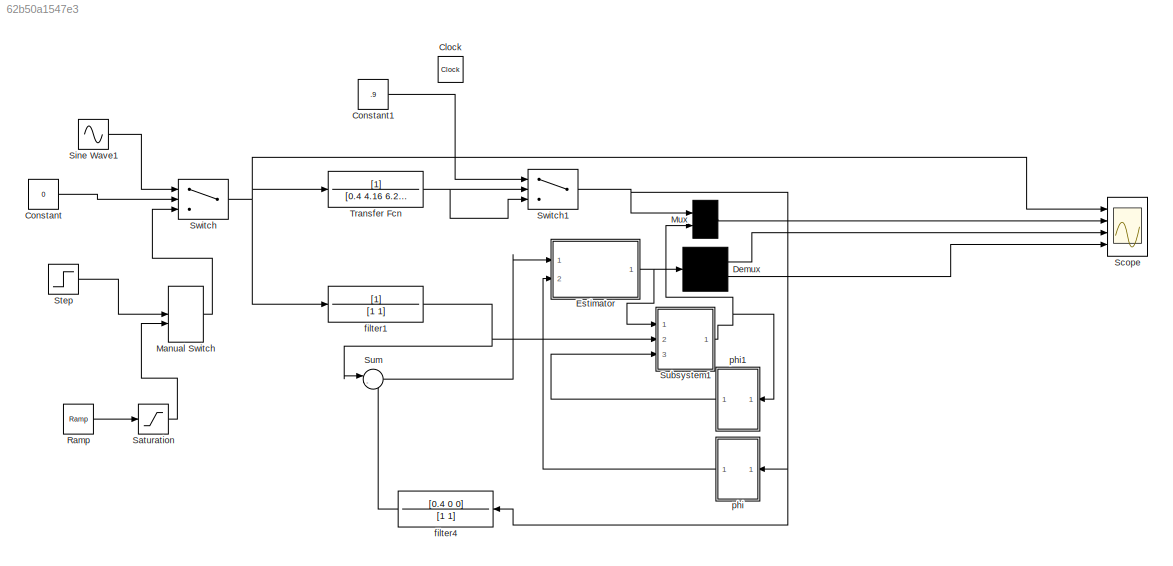
MODEL slx_62b50a1547e3
KIND model
CONFIG AbsTol = auto
CONFIG EnableMultiTasking = on
CONFIG FixedStep = auto
CONFIG MaxStep = auto
CONFIG MinStep = auto
CONFIG RelTol = 1e-3
CONFIG SampleTimeConstraint = Unconstrained
CONFIG Solver = VariableStepAuto
CONFIG SolverName = VariableStepAuto
CONFIG StartTime = 0.0
CONFIG StopTime = 10
BLOCK [Clock] Clock
  Decimation = 250
BLOCK [Constant] Constant
  Value = 0
BLOCK [Constant] Constant1
  Value = .9
BLOCK [Demux] Demux
  Outputs = 2
  Ports = [1, 2]
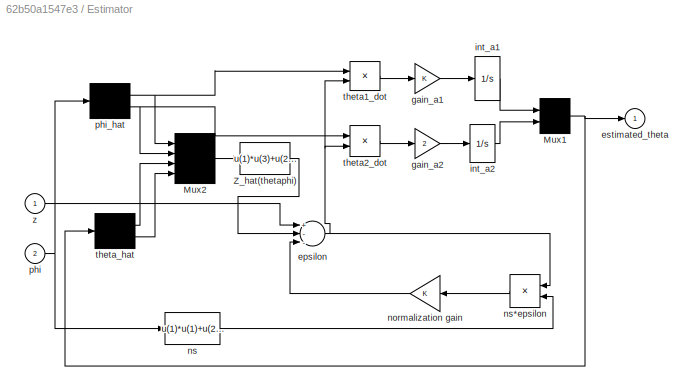
BLOCK [SubSystem] Estimator
  Ports = [2, 1]
  RequestExecContextInheritance = off
  ShowPortLabels = none
  Variant = off
BLOCK [Mux] Estimator/Mux1
  Inputs = 2
  Ports = [2, 1]
BLOCK [Mux] Estimator/Mux2
  Ports = [4, 1]
BLOCK [Fcn] Estimator/Z_hat(thetaphi)
  Expr = u(1)*u(3)+u(2)*u(4)
BLOCK [Sum] Estimator/epsilon
  Inputs = +--
  Ports = [3, 1]
BLOCK [Outport] Estimator/estimated_theta
  IconDisplay = Port number
BLOCK [Gain] Estimator/gain_a1
BLOCK [Gain] Estimator/gain_a2
  Gain = 2
BLOCK [Integrator] Estimator/int_a1
  Ports = [1, 1]
BLOCK [Integrator] Estimator/int_a2
  Ports = [1, 1]
BLOCK [Gain] Estimator/normalization gain
BLOCK [Fcn] Estimator/ns
  Expr = u(1)*u(1)+u(2)*u(2)
BLOCK [Product] Estimator/ns*epsilon
  Ports = [2, 1]
BLOCK [Inport] Estimator/phi
  IconDisplay = Port number
  Port = 2
BLOCK [Demux] Estimator/phi_hat
  Outputs = 2
  Ports = [1, 2]
BLOCK [Product] Estimator/theta1_dot
  Ports = [2, 1]
BLOCK [Product] Estimator/theta2_dot
  Ports = [2, 1]
BLOCK [Demux] Estimator/theta_hat
  Outputs = 2
  Ports = [1, 2]
BLOCK [Inport] Estimator/z
  IconDisplay = Port number
BLOCK [ManualSwitch] Manual Switch
BLOCK [Mux] Mux
  Inputs = 2
  Ports = [2, 1]
BLOCK [Reference] Ramp  REF=simulink/Sources/Ramp
  Ports = [0, 1]
  SourceBlock = simulink/Sources/Ramp
  SourceProductBaseCode = SL
  SourceProductName = Simulink
  SourceType = Ramp
BLOCK [Saturate] Saturation
  InputPortMap = u0
  Ports = [1, 1]
  UpperLimit = 9.81/1.5
BLOCK [Scope] Scope
  NumInputPorts = 4
  Ports = [4]
  ScopeSpecificationString = Simulink.scopes.TimeScopeBlockCfg('CurrentConfiguration', extmgr.ConfigurationSet(extmgr.Configuration('Core','General UI',true),extmgr.Configuration('Core','Source UI',true),extmgr.Configuration('Sources','WiredSimulink',true),extmgr.Configuration('Visuals','Time Domain',true,'SerializedDisplays',{struct('MinYLimReal','-0.8175','MaxYLimReal','7.3575','YLabelReal','','MinYLimMag','0.00000','MaxYLi...<+3330ch>
BLOCK [Sin] Sine Wave1
  Bias = 1
  Frequency = pi/3
  Phase = pi/2
  Ports = [0, 1]
  SampleTime = 0
BLOCK [Step] Step
  After = 9.81/1.5
  SampleTime = 0.001
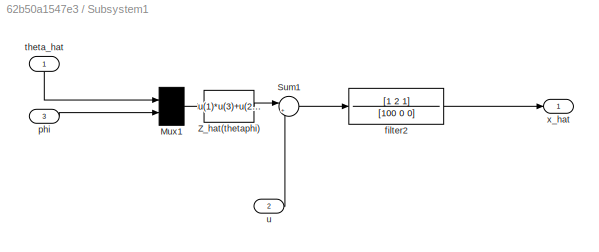
BLOCK [SubSystem] Subsystem1
  Ports = [3, 1]
  RequestExecContextInheritance = off
  Variant = off
BLOCK [Mux] Subsystem1/Mux1
  Inputs = 2
  Ports = [2, 1]
BLOCK [Sum] Subsystem1/Sum1
  IconShape = round
  InputSameDT = off
  Inputs = |++
  OutDataTypeStr = Inherit: Inherit via internal rule
  Ports = [2, 1]
  SaturateOnIntegerOverflow = off
BLOCK [Fcn] Subsystem1/Z_hat(thetaphi)
  Expr = u(1)*u(3)+u(2)*u(4)
BLOCK [TransferFcn] Subsystem1/filter2
  Denominator = [100 0 0]
  Numerator = [1 2 1]
BLOCK [Inport] Subsystem1/phi
  IconDisplay = Port number
  Port = 3
BLOCK [Inport] Subsystem1/theta_hat
  IconDisplay = Port number
BLOCK [Inport] Subsystem1/u
  IconDisplay = Port number
  Port = 2
BLOCK [Outport] Subsystem1/x_hat
  IconDisplay = Port number
BLOCK [Sum] Sum
  IconShape = round
  InputSameDT = off
  Inputs = |-+
  OutDataTypeStr = Inherit: Inherit via internal rule
  Ports = [2, 1]
  SaturateOnIntegerOverflow = off
BLOCK [Switch] Switch
  Criteria = u2 > Threshold
  InputSameDT = off
  SaturateOnIntegerOverflow = off
BLOCK [Switch] Switch1
  Criteria = u2 > Threshold
  InputSameDT = off
  SaturateOnIntegerOverflow = off
  Threshold = .9
BLOCK [TransferFcn] Transfer Fcn
  Denominator = [0.4 4.16 6.25]
BLOCK [TransferFcn] filter1
BLOCK [TransferFcn] filter4
  Numerator = [0.4 0 0]
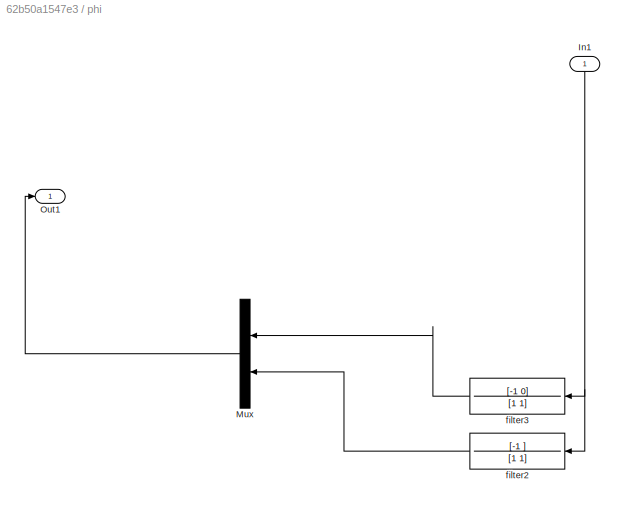
BLOCK [SubSystem] phi
  Ports = [1, 1]
  RequestExecContextInheritance = off
  Variant = off
BLOCK [Inport] phi/In1
  IconDisplay = Port number
BLOCK [Mux] phi/Mux
  DisplayOption = bar
  Inputs = 2
  Ports = [2, 1]
BLOCK [Outport] phi/Out1
  IconDisplay = Port number
BLOCK [TransferFcn] phi/filter2
  Numerator = [-1 ]
BLOCK [TransferFcn] phi/filter3
  Numerator = [-1  0]
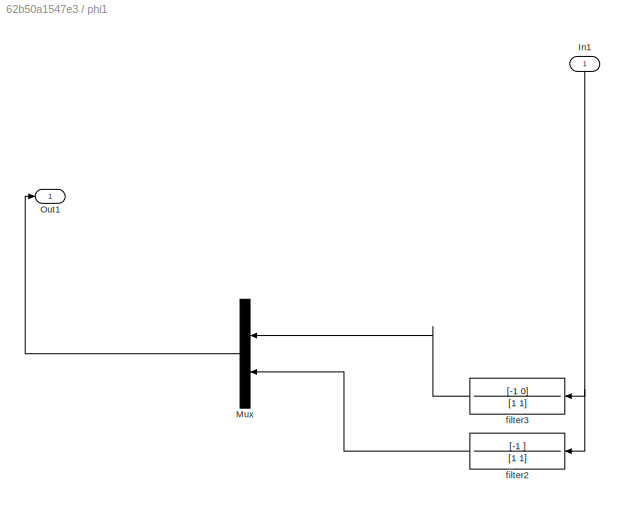
BLOCK [SubSystem] phi1
  Ports = [1, 1]
  RequestExecContextInheritance = off
  Variant = off
BLOCK [Inport] phi1/In1
  IconDisplay = Port number
BLOCK [Mux] phi1/Mux
  DisplayOption = bar
  Inputs = 2
  Ports = [2, 1]
BLOCK [Outport] phi1/Out1
  IconDisplay = Port number
BLOCK [TransferFcn] phi1/filter2
  Numerator = [-1 ]
BLOCK [TransferFcn] phi1/filter3
  Numerator = [-1  0]
LINE Constant1:1 -> Switch1:1
LINE Constant:1 -> Switch:2
LINE Demux:1 -> Scope:3
LINE Demux:2 -> Scope:4
NET Estimator/Mux1:1 -> Estimator/estimated_theta:1, Estimator/theta_hat:1
LINE Estimator/Mux2:1 -> Estimator/Z_hat(thetaphi):1
LINE Estimator/Z_hat(thetaphi):1 -> Estimator/epsilon:2
NET Estimator/epsilon:1 -> Estimator/ns*epsilon:1, Estimator/theta1_dot:2, Estimator/theta2_dot:2
LINE Estimator/gain_a1:1 -> Estimator/int_a1:1
LINE Estimator/gain_a2:1 -> Estimator/int_a2:1
LINE Estimator/int_a1:1 -> Estimator/Mux1:1
LINE Estimator/int_a2:1 -> Estimator/Mux1:2
LINE Estimator/normalization gain:1 -> Estimator/epsilon:3
LINE Estimator/ns*epsilon:1 -> Estimator/normalization gain:1
LINE Estimator/ns:1 -> Estimator/ns*epsilon:2
NET Estimator/phi:1 -> Estimator/ns:1, Estimator/phi_hat:1
NET Estimator/phi_hat:1 -> Estimator/Mux2:1, Estimator/theta1_dot:1
NET Estimator/phi_hat:2 -> Estimator/Mux2:2, Estimator/theta2_dot:1
LINE Estimator/theta1_dot:1 -> Estimator/gain_a1:1
LINE Estimator/theta2_dot:1 -> Estimator/gain_a2:1
LINE Estimator/theta_hat:1 -> Estimator/Mux2:3
LINE Estimator/theta_hat:2 -> Estimator/Mux2:4
LINE Estimator/z:1 -> Estimator/epsilon:1
NET Estimator:1 -> Demux:1, Subsystem1:1
LINE Manual Switch:1 -> Switch:3
LINE Mux:1 -> Scope:2
LINE Ramp:1 -> Saturation:1
LINE Saturation:1 -> Manual Switch:2
LINE Sine Wave1:1 -> Switch:1
LINE Step:1 -> Manual Switch:1
LINE Subsystem1/Mux1:1 -> Subsystem1/Z_hat(thetaphi):1
LINE Subsystem1/Sum1:1 -> Subsystem1/filter2:1
LINE Subsystem1/Z_hat(thetaphi):1 -> Subsystem1/Sum1:1
LINE Subsystem1/filter2:1 -> Subsystem1/x_hat:1
LINE Subsystem1/phi:1 -> Subsystem1/Mux1:2
LINE Subsystem1/theta_hat:1 -> Subsystem1/Mux1:1
LINE Subsystem1/u:1 -> Subsystem1/Sum1:2
NET Subsystem1:1 -> Mux:2, phi1:1
LINE Sum:1 -> Estimator:1
NET Switch1:1 -> Mux:1, filter4:1, phi:1
NET Switch:1 -> Scope:1, Transfer Fcn:1, filter1:1
NET Transfer Fcn:1 -> Switch1:2, Switch1:3
NET filter1:1 -> Subsystem1:2, Sum:1
LINE filter4:1 -> Sum:2
NET phi/In1:1 -> phi/filter2:1, phi/filter3:1
LINE phi/Mux:1 -> phi/Out1:1
LINE phi/filter2:1 -> phi/Mux:2
LINE phi/filter3:1 -> phi/Mux:1
NET phi1/In1:1 -> phi1/filter2:1, phi1/filter3:1
LINE phi1/Mux:1 -> phi1/Out1:1
LINE phi1/filter2:1 -> phi1/Mux:2
LINE phi1/filter3:1 -> phi1/Mux:1
LINE phi1:1 -> Subsystem1:3
LINE phi:1 -> Estimator:2
note: NET lines group one-source signal fan-out (src -> all destinations, sorted); 1:1 wires keep LINE
